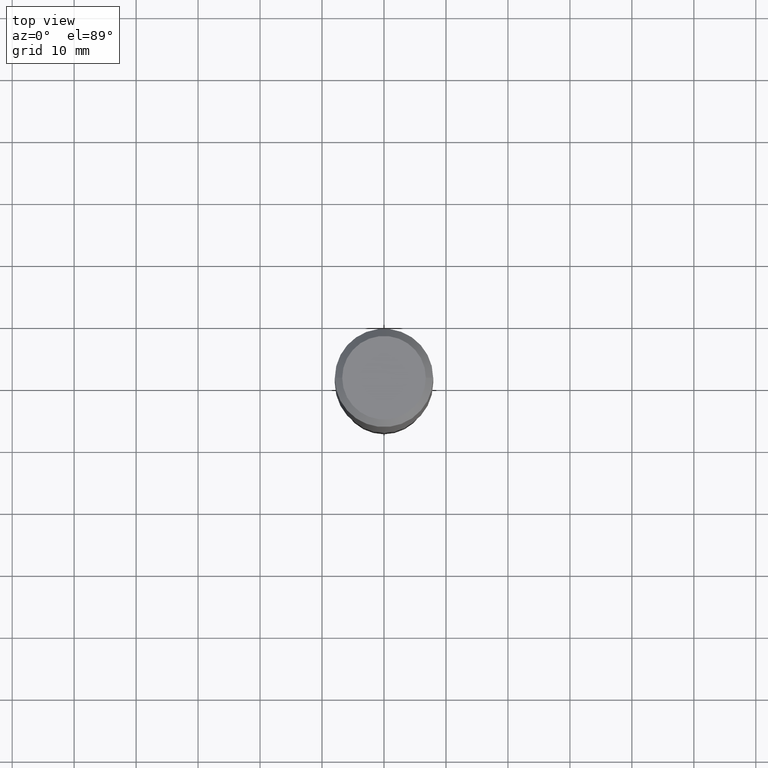
[diagram: clean part render]
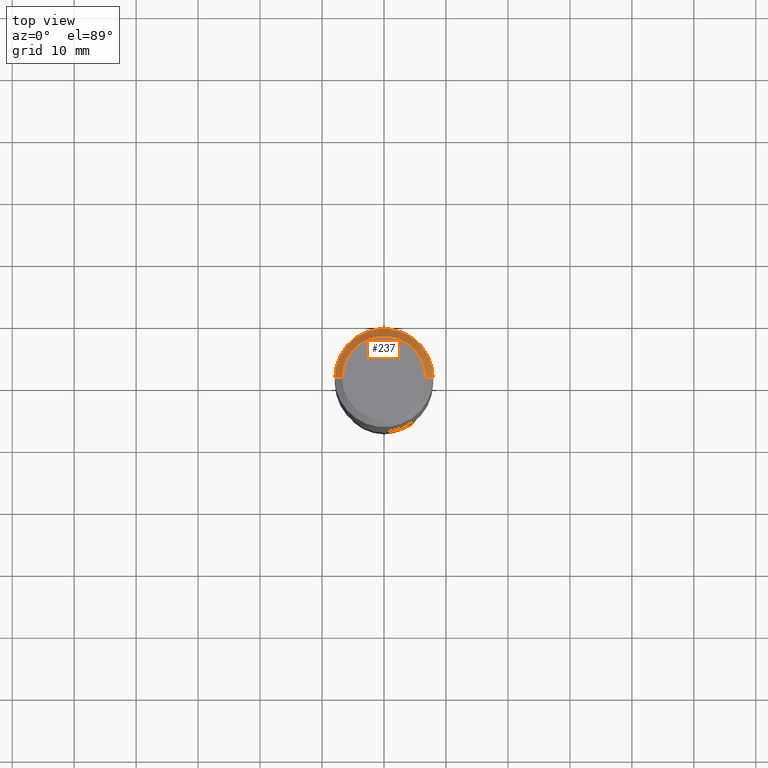
[diagram: same view with one face highlighted and labeled with its STEP entity id]
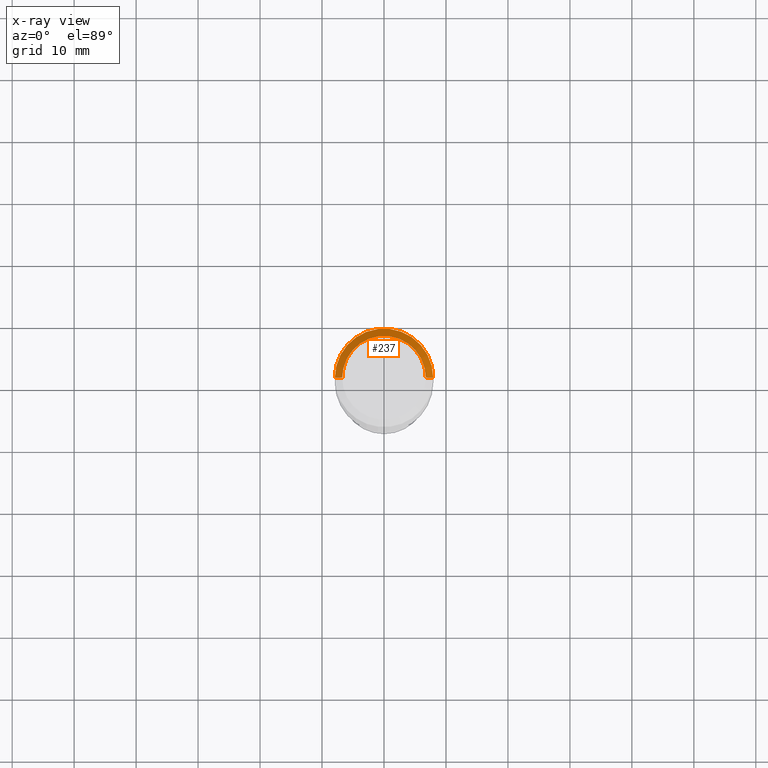
[diagram: x-ray of the same camera — body ghosted, the highlighted face saturated]
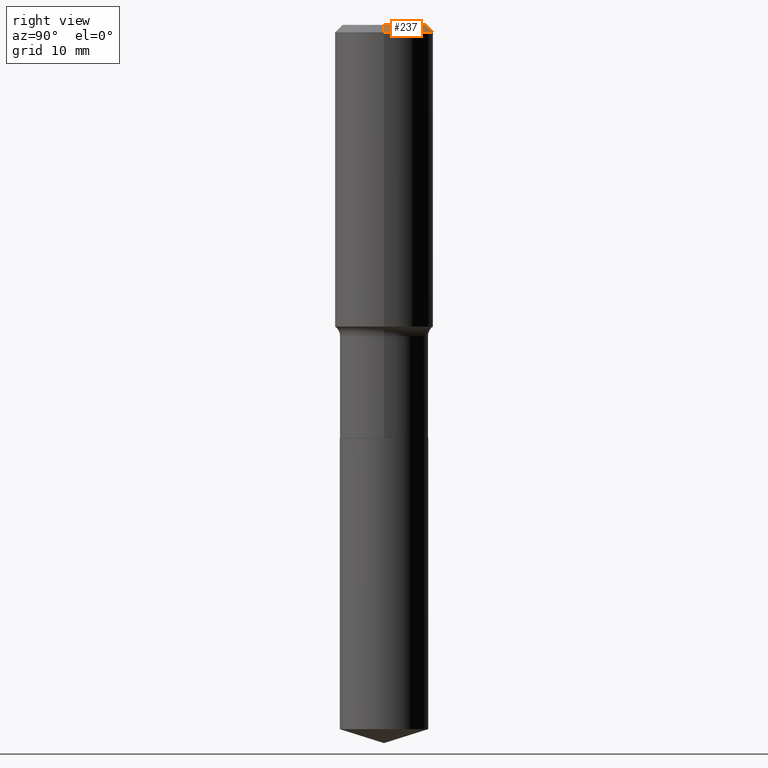
[diagram: same view with one face highlighted and labeled with its STEP entity id]
A machine part, top view. The second image highlights one B-rep face of the part: STEP entity #237.
The next image is the same camera in x-ray: the body ghosted, the highlighted face saturated — about 0% of this face is hidden behind the body in this view.
A second angle (right view) of the same face is appended — the face is thin or edge-on in the first view.
In plain terms, the highlighted conical surface has half-angle 45 deg.
Its self-contained STEP definition (entity closure, byte-faithful):
#18 = DIRECTION ( 'NONE',  ( 0.7071067811865453523, -7.319954787623248157E-15, -0.7071067811865496822 ) ) ;
#21 = ORIENTED_EDGE ( 'NONE', *, *, #488, .F. ) ;
#29 = DIRECTION ( 'NONE',  ( -0.7071067811865453523, 2.468850131082234184E-15, -0.7071067811865496822 ) ) ;
#58 = CIRCLE ( 'NONE', #344, 0.2656250000000000000 ) ;
#67 = VECTOR ( 'NONE', #29, 39.37007874015748143 ) ;
#83 = ORIENTED_EDGE ( 'NONE', *, *, #332, .T. ) ;
#87 = DIRECTION ( 'NONE',  ( 1.000000000000000000, -6.982962677686268288E-15, 4.876286914311434227E-29 ) ) ;
#102 = CARTESIAN_POINT ( 'NONE',  ( 0.2656250000000000000, -2.064944296359970168E-15, 6.505936120484021373E-18 ) ) ;
#108 = AXIS2_PLACEMENT_3D ( 'NONE', #212, #130, #175 ) ;
#118 = DIRECTION ( 'NONE',  ( -2.445468806185136597E-29, 3.491481338843145583E-15, 1.000000000000000000 ) ) ;
#124 = AXIS2_PLACEMENT_3D ( 'NONE', #256, #398, #258 ) ;
#128 = CARTESIAN_POINT ( 'NONE',  ( 0.3125000000000000000, -2.307568812061876870E-15, -0.04687500000000027062 ) ) ;
#130 = DIRECTION ( 'NONE',  ( -2.445468806185136597E-29, 3.491481338843145583E-15, 1.000000000000000000 ) ) ;
#135 = CARTESIAN_POINT ( 'NONE',  ( -0.2656250000000000000, 1.936681055139549843E-15, 6.505936120457058354E-18 ) ) ;
#143 = FACE_OUTER_BOUND ( 'NONE', #491, .T. ) ;
#156 = CARTESIAN_POINT ( 'NONE',  ( -1.591006383764330162E-46, 2.271535455632767854E-32, 6.505936120470315685E-18 ) ) ;
#163 = EDGE_CURVE ( 'NONE', #301, #348, #58, .T. ) ;
#175 = DIRECTION ( 'NONE',  ( 1.000000000000000000, -6.982962677686266711E-15, 0.000000000000000000 ) ) ;
#212 = CARTESIAN_POINT ( 'NONE',  ( 1.146313502899289261E-30, -1.636631877582734044E-16, -0.04687500000000027062 ) ) ;
#217 = VERTEX_POINT ( 'NONE', #442 ) ;
#220 = CONICAL_SURFACE ( 'NONE', #124, 0.3125000000000000000, 0.7853981633974452814 ) ;
#237 = ADVANCED_FACE ( 'NONE', ( #143 ), #220, .T. ) ;
#245 = LINE ( 'NONE', #252, #67 ) ;
#252 = CARTESIAN_POINT ( 'NONE',  ( -0.3125000000000000000, 2.018512649018685091E-15, -0.04687500000000027062 ) ) ;
#256 = CARTESIAN_POINT ( 'NONE',  ( 1.146313502899289261E-30, -1.636631877582734044E-16, -0.04687500000000027062 ) ) ;
#258 = DIRECTION ( 'NONE',  ( -1.000000000000000000, 6.982962677686266711E-15, 0.000000000000000000 ) ) ;
#266 = ORIENTED_EDGE ( 'NONE', *, *, #372, .T. ) ;
#288 = CARTESIAN_POINT ( 'NONE',  ( 0.3125000000000000000, -2.345839024535231998E-15, -0.04687500000000027062 ) ) ;
#301 = VERTEX_POINT ( 'NONE', #102 ) ;
#323 = CIRCLE ( 'NONE', #108, 0.3125000000000000000 ) ;
#332 = EDGE_CURVE ( 'NONE', #301, #383, #404, .T. ) ;
#344 = AXIS2_PLACEMENT_3D ( 'NONE', #156, #118, #87 ) ;
#348 = VERTEX_POINT ( 'NONE', #135 ) ;
#350 = VECTOR ( 'NONE', #18, 39.37007874015748143 ) ;
#372 = EDGE_CURVE ( 'NONE', #383, #217, #323, .T. ) ;
#383 = VERTEX_POINT ( 'NONE', #288 ) ;
#398 = DIRECTION ( 'NONE',  ( 2.445468806185136597E-29, -3.491481338843145583E-15, -1.000000000000000000 ) ) ;
#404 = LINE ( 'NONE', #128, #350 ) ;
#442 = CARTESIAN_POINT ( 'NONE',  ( -0.3125000000000000000, -1.205635534373644460E-15, -0.04687500000000027062 ) ) ;
#458 = ORIENTED_EDGE ( 'NONE', *, *, #163, .F. ) ;
#488 = EDGE_CURVE ( 'NONE', #348, #217, #245, .T. ) ;
#491 = EDGE_LOOP ( 'NONE', ( #458, #83, #266, #21 ) ) ;